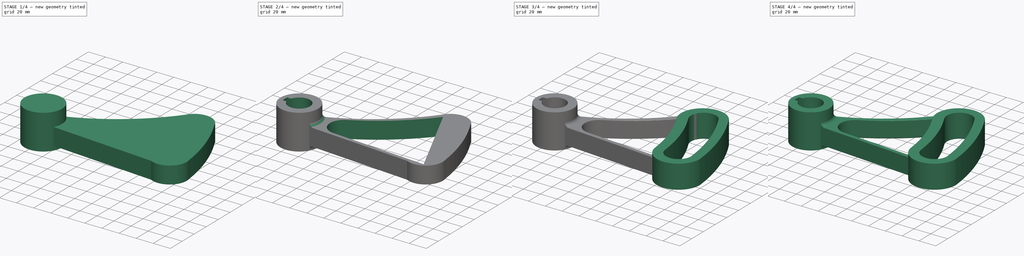
[diagram: build sequence overview — one tinted view per stage of 4, left to right]
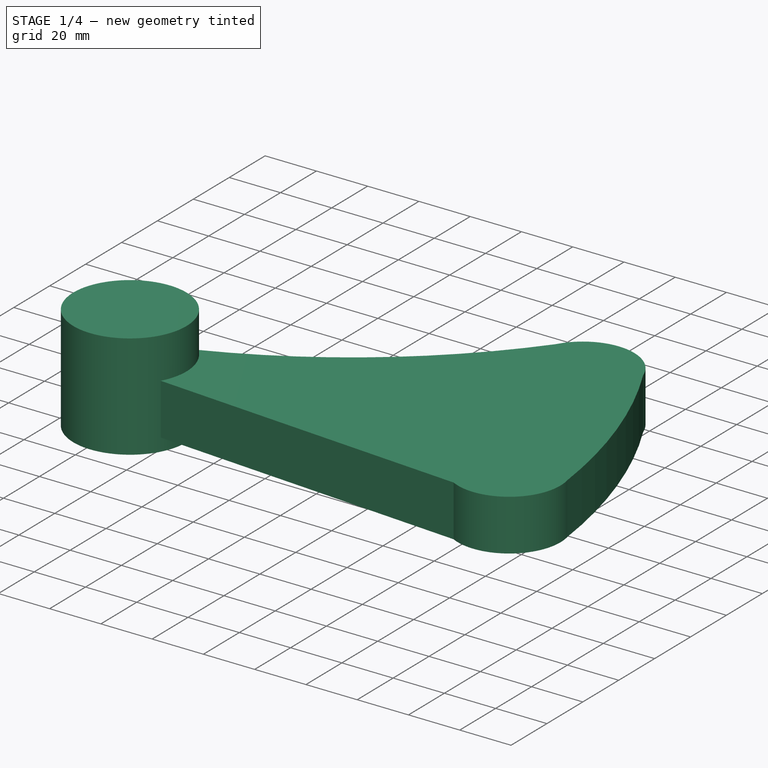
[diagram: stage 1 of 4 — iso view after this stage's code; geometry added in this stage tinted green]
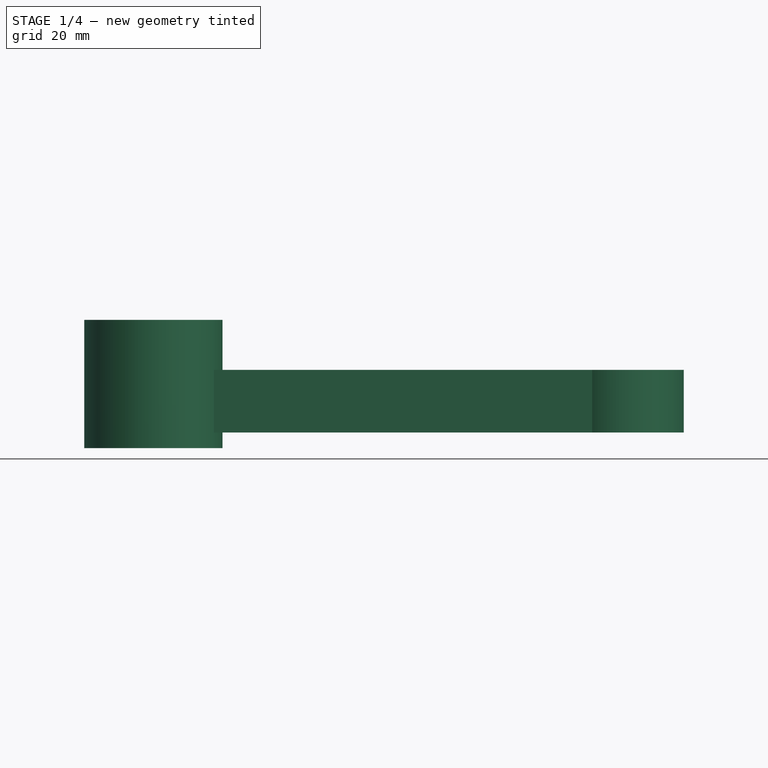
[diagram: stage 1 of 4 — front view after this stage's code; geometry added in this stage tinted green]
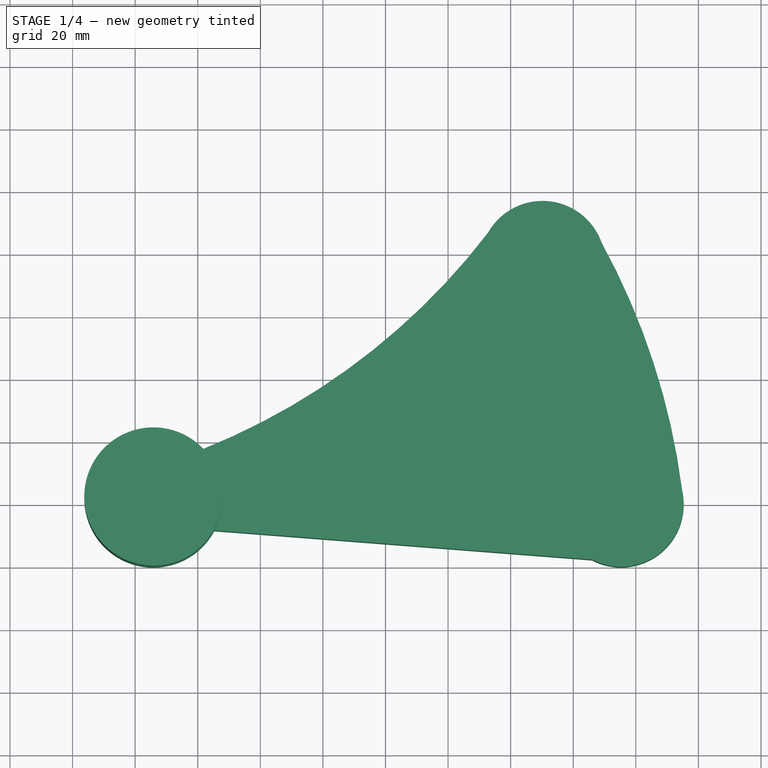
[diagram: stage 1 of 4 — top view after this stage's code; geometry added in this stage tinted green]
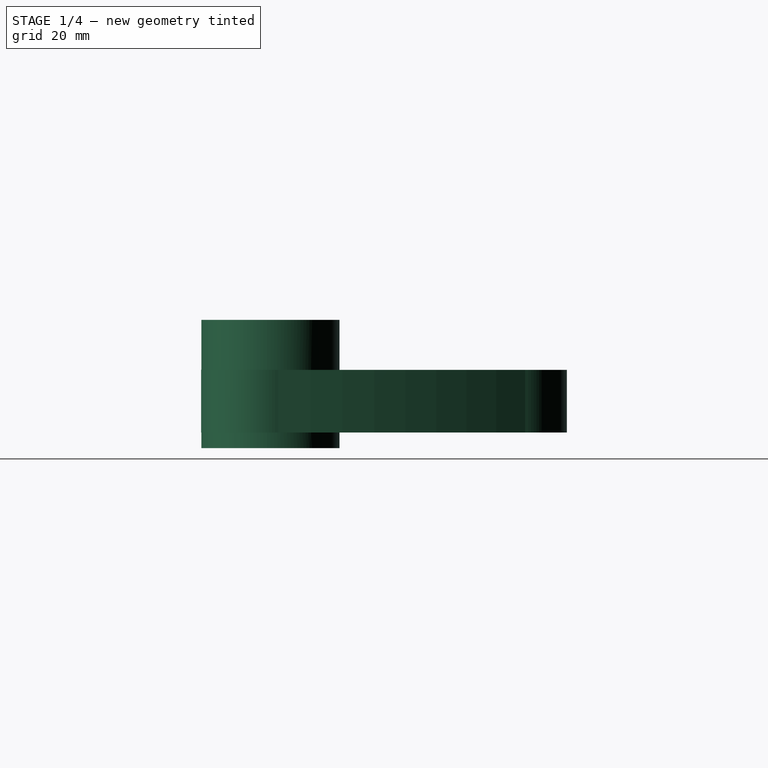
[diagram: stage 1 of 4 — right view after this stage's code; geometry added in this stage tinted green]
FCSTD DOCUMENT  (FreeCAD 0.21R33771 (Git))
Label: ex77
License: All rights reserved
LicenseURL: http://en.wikipedia.org/wiki/All_rights_reserved
objects: Sketcher::SketchObject×7, PartDesign::Fillet×4, PartDesign::Pad×3, PartDesign::Pocket×3, PartDesign::Body×1
note: 28 computed .brp shape members not serialized (recipe doc carries the construction recipe); baked Part::Feature solids carry a one-line shape summary decoded from their .brp

FEATURE [Sketcher::SketchObject] Sketch001
  FullyConstrained = false
  MapMode = 5
  Support = -> [XY_Plane]
  sketch-geometry (12):
    g0: ArcOfCircle CenterX=-74.1747 CenterY=2.1336 CenterZ=0 NormalX=0 NormalY=0 NormalZ=1 AngleXU=0 Radius=9.3715 StartAngle=1.85402 EndAngle=4.9092
    g1: LineSegment StartX=-72.3422 StartY=-7.05698 StartZ=0 EndX=66.0257 EndY=-17.7539 EndZ=0
    g2: ArcOfCircle CenterX=75.2852 CenterY=0 CenterZ=0 NormalX=0 NormalY=0 NormalZ=1 AngleXU=0 Radius=20.0234 StartAngle=4.23165 EndAngle=6.51385
    g3: ArcOfCircle CenterX=50.1887 CenterY=76.8527 CenterZ=0 NormalX=0 NormalY=0 NormalZ=1 AngleXU=0 Radius=20.0234 StartAngle=0.340709 EndAngle=2.6287
    g4: GeomPoint X=65.5913 Y=89.6472 Z=0
    g5: GeomPoint X=94.7783 Y=4.57789 Z=0
    g6: GeomPoint X=32.7417 Y=86.6783 Z=0
    g7: GeomPoint X=34.2788 Y=86.3173 Z=0
    g8: GeomPoint X=-76.6982 Y=11.1589 Z=0
    g9: GeomPoint X=-76.6414 Y=10.3382 Z=0
    g10: ArcOfCircle CenterX=-138.672 CenterY=218.03 CenterZ=0 NormalX=0 NormalY=0 NormalZ=1 AngleXU=0 Radius=215.954 StartAngle=5.003 EndAngle=5.62934
    g11: ArcOfCircle CenterX=-127.411 CenterY=-24.113 CenterZ=0 NormalX=0 NormalY=0 NormalZ=1 AngleXU=0 Radius=224.034 StartAngle=0.128418 EndAngle=0.501267
  constraints (13):
    c: PointOnObject(g2,g-1)
    c: PointOnObject(g4,g3)
    c: PointOnObject(g5,g2)
    c: Equal(g3,g2)
    c: PointOnObject(g6,g3)
    c: PointOnObject(g8,g0)
    c: PointOnObject(g10,g0)
    c: Coincident(g1,g2)
    c: Coincident(g0,g1)
    c: PointOnObject(g0,g10)
    c: PointOnObject(g11,g3)
    c: Coincident(g10,g3)
    c: PointOnObject(g11,g2)
FEATURE [PartDesign::Pad] Pad
  Direction = (0,0,1)
  Length = 20
  Length2 = 10
  Profile = -> Sketch001
  ReferenceAxis = -> Sketch001 [N_Axis]
  Refine = true
  Type = 0
FEATURE [Sketcher::SketchObject] Sketch002
  AttachmentOffset = pos=(0,0,-5) rot=(0,0,1;0rad)
  FullyConstrained = false
  MapMode = 5
  Placement = pos=(0,0,-5) rot=(0,0,1;0rad)
  Support = -> [XY_Plane]
  sketch-geometry (1):
    g0: Circle CenterX=-74.1743 CenterY=2.13435 CenterZ=0 NormalX=0 NormalY=0 NormalZ=1 AngleXU=0 Radius=22.077
FEATURE [PartDesign::Pad] Pad001
  BaseFeature = -> Pad
  Direction = (0,0,1)
  Length = 41
  Length2 = 10
  Profile = -> Sketch002
  ReferenceAxis = -> Sketch002 [N_Axis]
  Refine = true
  Type = 0
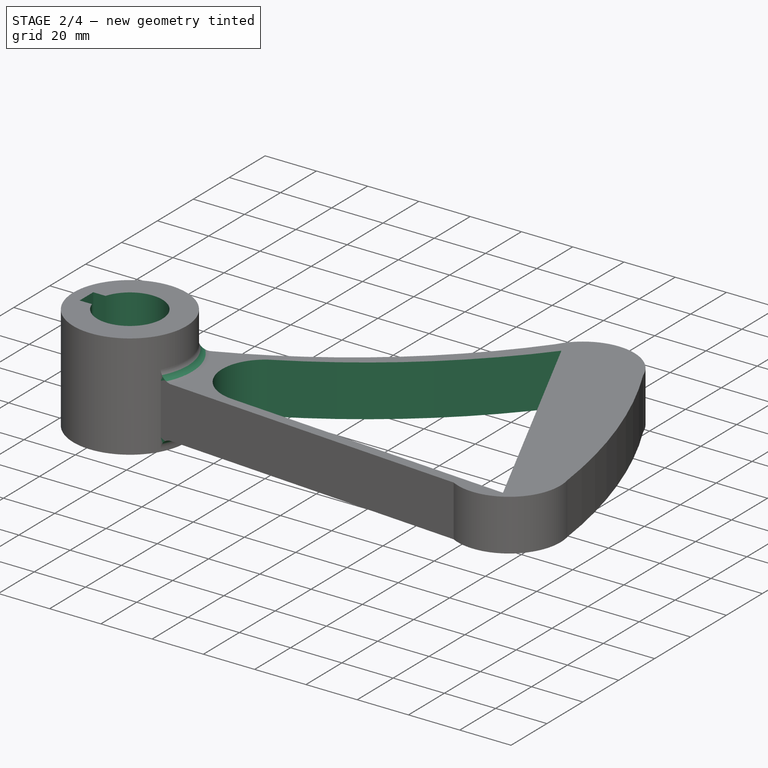
[diagram: stage 2 of 4 — iso view after this stage's code; geometry added in this stage tinted green]
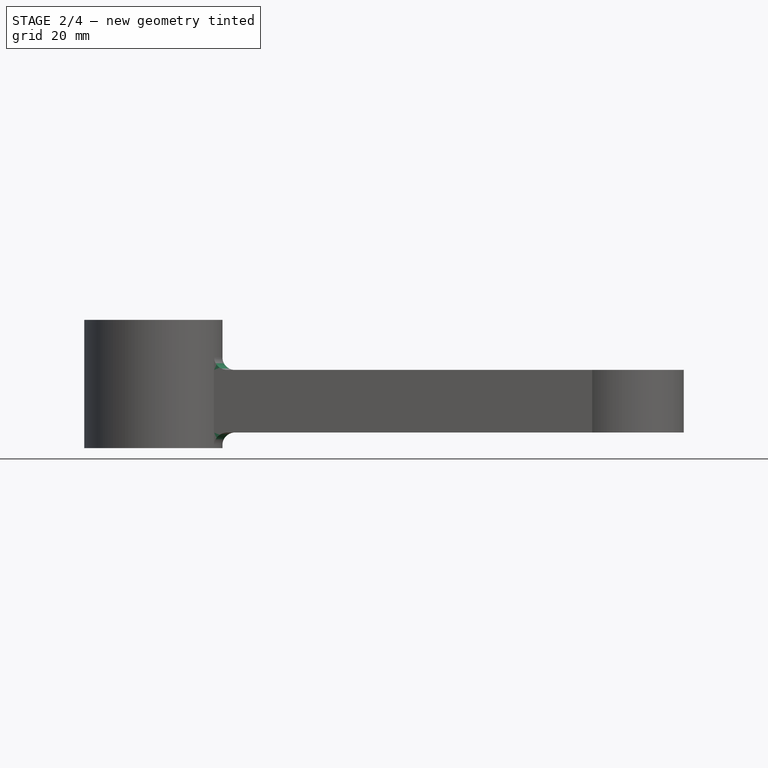
[diagram: stage 2 of 4 — front view after this stage's code; geometry added in this stage tinted green]
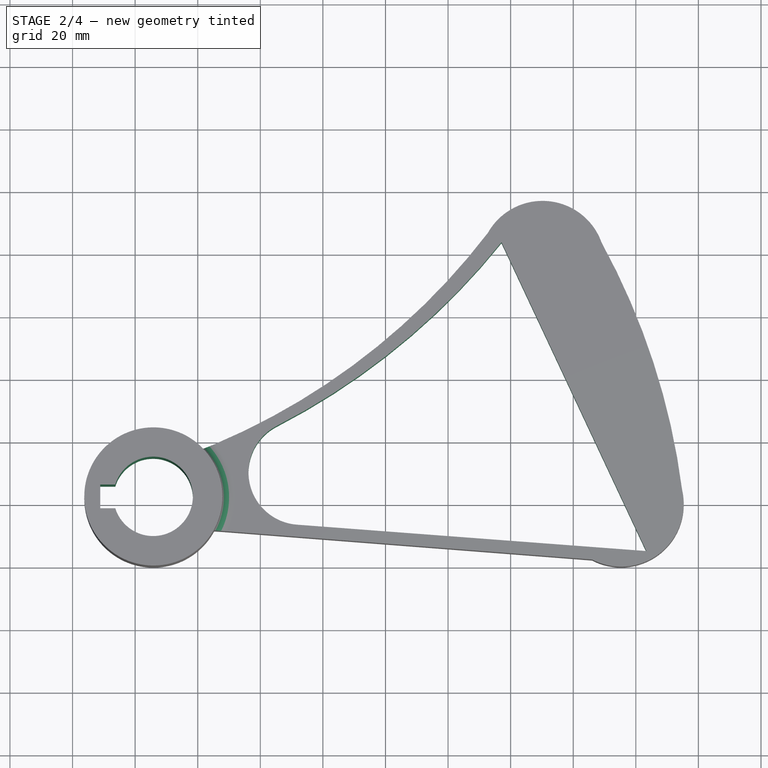
[diagram: stage 2 of 4 — top view after this stage's code; geometry added in this stage tinted green]
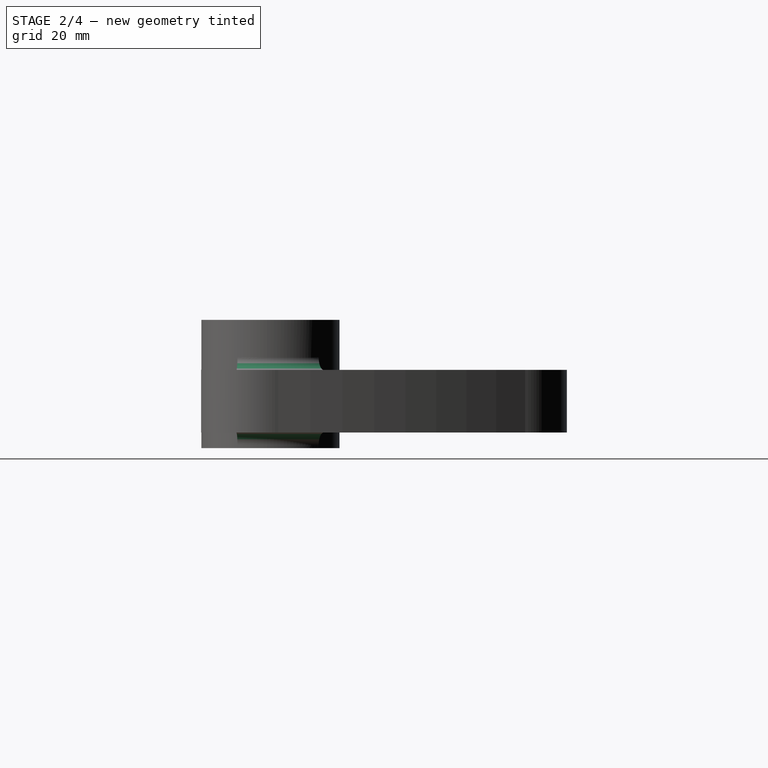
[diagram: stage 2 of 4 — right view after this stage's code; geometry added in this stage tinted green]
FEATURE [Sketcher::SketchObject] Sketch003
  FullyConstrained = false
  MapMode = 5
  Placement = pos=(0,0,36) rot=(0,0,1;0rad)
  Support = -> [Pad001]
  sketch-geometry (5):
    g0: ArcOfCircle CenterX=-74.2395 CenterY=2.16483 CenterZ=0 NormalX=0 NormalY=0 NormalZ=1 AngleXU=0 Radius=12.6888 StartAngle=3.44472 EndAngle=9.12165
    g1: LineSegment StartX=-86.3498 StartY=5.95248 StartZ=0 EndX=-91.1621 EndY=5.95248 EndZ=0
    g2: LineSegment StartX=-91.1621 StartY=5.95248 StartZ=0 EndX=-91.1621 EndY=-1.62282 EndZ=0
    g3: LineSegment StartX=-91.1621 StartY=-1.62282 StartZ=0 EndX=-86.3498 EndY=-1.62282 EndZ=0
    g4: GeomPoint X=-74.2395 Y=2.16483 Z=0
  constraints (8):
    c: Coincident(g1,g2)
    c: Coincident(g2,g3)
    c: Horizontal(g1)
    c: Horizontal(g3)
    c: Vertical(g2)
    c: Coincident(g4,g0)
    c: Coincident(g0,g1)
    c: Coincident(g0,g3)
FEATURE [PartDesign::Pocket] Pocket
  BaseFeature = -> Pad001
  Direction = (0,0,-1)
  Length = 5
  Length2 = 5
  Profile = -> Sketch003
  ReferenceAxis = -> Sketch003 [N_Axis]
  Refine = true
  Type = 1
FEATURE [PartDesign::Fillet] Fillet
  Base = -> Pocket [Edge17,Edge16,Edge10,Edge9]
  BaseFeature = -> Pocket
  Radius = 4
  Refine = true
  SupportTransform = false
  UseAllEdges = false
FEATURE [Sketcher::SketchObject] Sketch004
  AttachmentOffset = pos=(0,0,20) rot=(0,0,1;0rad)
  FullyConstrained = false
  MapMode = 5
  Placement = pos=(0,0,20) rot=(0,0,1;0rad)
  Support = -> [XY_Plane]
  sketch-geometry (5):
    g0: ArcOfCircle CenterX=-137.01 CenterY=223.39 CenterZ=0 NormalX=0 NormalY=0 NormalZ=1 AngleXU=0 Radius=223.237 StartAngle=5.18846 EndAngle=5.60676
    g1: LineSegment StartX=-28.2886 StartY=-6.60949 StartZ=0 EndX=83.3637 EndY=-15.0417 EndZ=0
    g2: GeomPoint X=37.0731 Y=83.6413 Z=0
    g3: LineSegment StartX=37.0731 StartY=83.6413 StartZ=0 EndX=83.3637 EndY=-15.0417 EndZ=0
    g4: ArcOfCircle CenterX=-27.0274 CenterY=10.091 CenterZ=0 NormalX=0 NormalY=0 NormalZ=1 AngleXU=0 Radius=16.748 StartAngle=2.04687 EndAngle=4.63701
  constraints (5):
    c: Coincident(g3,g2)
    c: Coincident(g3,g1)
    c: Coincident(g0,g3)
    c: Tangent(g4,g1) = -1.5708
    c: Tangent(g4,g0) = 1.5708
FEATURE [PartDesign::Pocket] Pocket001
  BaseFeature = -> Fillet
  Direction = (0,0,-1)
  Length = 5
  Length2 = 5
  Profile = -> Sketch004
  ReferenceAxis = -> Sketch004 [N_Axis]
  Refine = true
  Type = 1
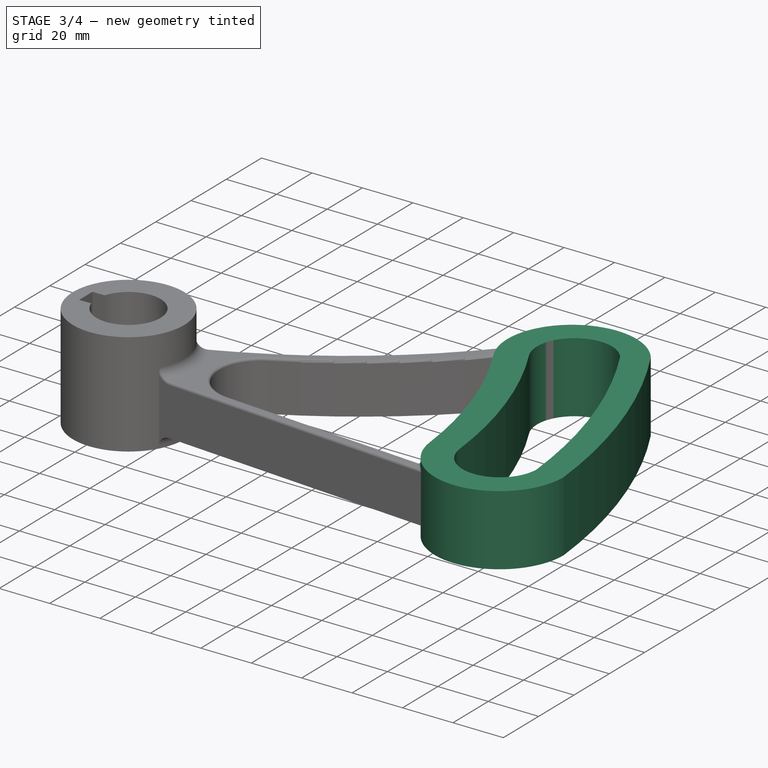
[diagram: stage 3 of 4 — iso view after this stage's code; geometry added in this stage tinted green]
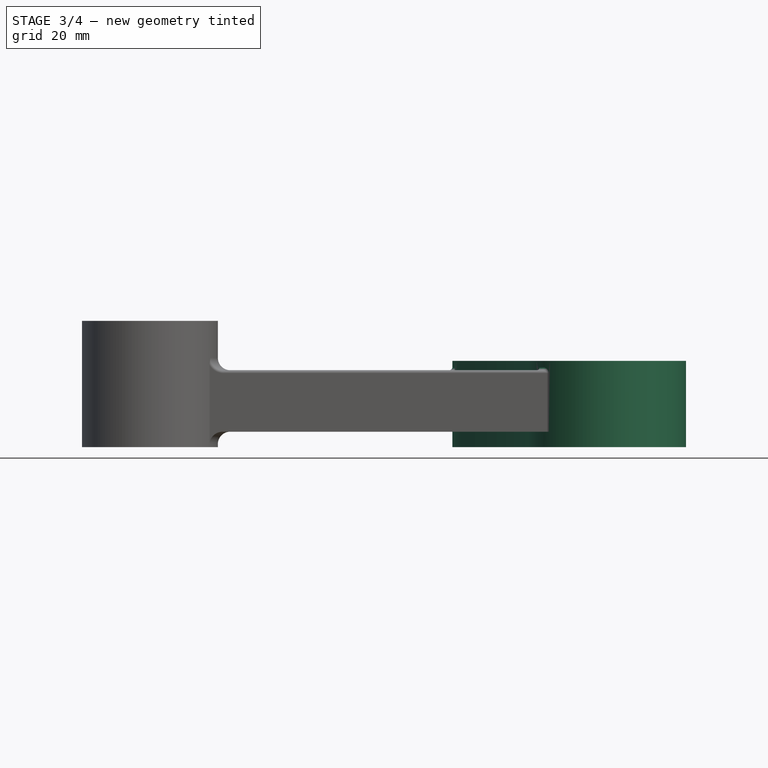
[diagram: stage 3 of 4 — front view after this stage's code; geometry added in this stage tinted green]
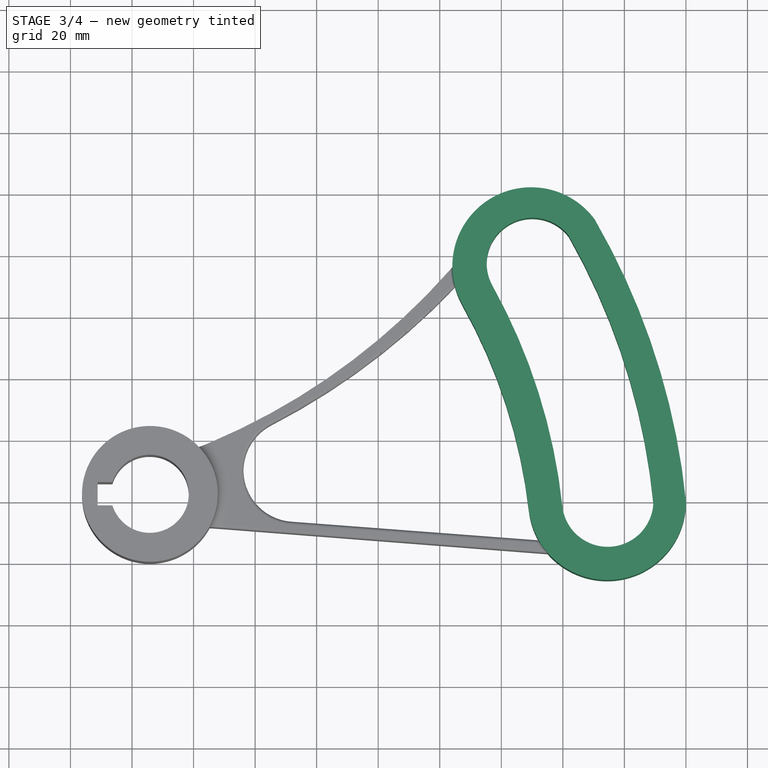
[diagram: stage 3 of 4 — top view after this stage's code; geometry added in this stage tinted green]
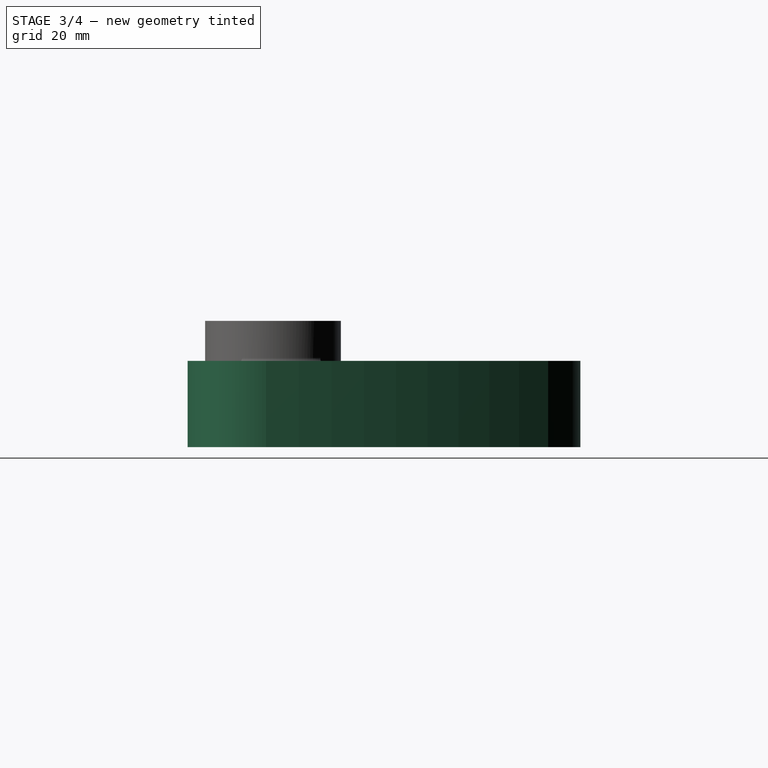
[diagram: stage 3 of 4 — right view after this stage's code; geometry added in this stage tinted green]
FEATURE [Sketcher::SketchObject] Sketch
  FullyConstrained = false
  MapMode = 5
  Support = -> [XY_Plane]
  sketch-geometry (12):
    g0: Circle CenterX=-74.1743 CenterY=2.13435 CenterZ=0 NormalX=0 NormalY=0 NormalZ=1 AngleXU=0 Radius=9.37216
    g1: Circle CenterX=-138.672 CenterY=218.03 CenterZ=0 NormalX=0 NormalY=0 NormalZ=1 AngleXU=0 Radius=215.954
    g2: LineSegment StartX=-72.3422 StartY=-7.05698 StartZ=0 EndX=81.706 EndY=-18.9661 EndZ=0
    g3: Circle CenterX=75.2852 CenterY=0 CenterZ=0 NormalX=0 NormalY=0 NormalZ=1 AngleXU=0 Radius=20.0234
    g4: Circle CenterX=50.1887 CenterY=76.8527 CenterZ=0 NormalX=0 NormalY=0 NormalZ=1 AngleXU=0 Radius=20.0234
    g5: Circle CenterX=-127.411 CenterY=-24.113 CenterZ=0 NormalX=0 NormalY=0 NormalZ=1 AngleXU=0 Radius=224.034
    g6: GeomPoint X=65.5913 Y=89.6472 Z=0
    g7: GeomPoint X=94.7783 Y=4.57789 Z=0
    g8: GeomPoint X=32.7417 Y=86.6783 Z=0
    g9: GeomPoint X=34.2788 Y=86.3173 Z=0
    g10: GeomPoint X=-76.6982 Y=11.1603 Z=0
    g11: GeomPoint X=-76.6414 Y=10.3382 Z=0
  constraints (12):
    c: PointOnObject(g2,g0)
    c: PointOnObject(g3,g-1)
    c: PointOnObject(g2,g3)
    c: PointOnObject(g6,g4)
    c: PointOnObject(g6,g5)
    c: PointOnObject(g7,g5)
    c: PointOnObject(g7,g3)
    c: Equal(g4,g3)
    c: PointOnObject(g8,g1)
    c: PointOnObject(g8,g4)
    c: PointOnObject(g10,g0)
    c: PointOnObject(g10,g1)
FEATURE [Sketcher::SketchObject] Sketch005
  AttachmentOffset = pos=(0,0,-5) rot=(0,0,1;0rad)
  FullyConstrained = false
  MapMode = 5
  Placement = pos=(0,0,-5) rot=(0,0,1;0rad)
  Support = -> [XY_Plane]
  sketch-geometry (6):
    g0: ArcOfCircle CenterX=74.4058 CenterY=0 CenterZ=0 NormalX=0 NormalY=0 NormalZ=1 AngleXU=0 Radius=25.6135 StartAngle=3.25592 EndAngle=6.27691
    g1: ArcOfCircle CenterX=49.7097 CenterY=76.3977 CenterZ=0 NormalX=0 NormalY=0 NormalZ=1 AngleXU=0 Radius=25.6135 StartAngle=0.631585 EndAngle=3.65257
    g2: ArcOfCircle CenterX=-128.02 CenterY=-23.2452 CenterZ=0 NormalX=0 NormalY=0 NormalZ=1 AngleXU=0 Radius=229.204 StartAngle=0.100887 EndAngle=0.524423
    g3: GeomPoint X=70.3821 Y=91.5205 Z=0
    g4: GeomPoint X=99.3156 Y=5.96243 Z=0
    g5: ArcOfCircle CenterX=-128.02 CenterY=-23.2452 CenterZ=0 NormalX=0 NormalY=0 NormalZ=1 AngleXU=0 Radius=178.143 StartAngle=0.114332 EndAngle=0.510977
  constraints (11):
    c: PointOnObject(g0,g-1)
    c: PointOnObject(g3,g1)
    c: PointOnObject(g3,g2)
    c: PointOnObject(g4,g2)
    c: PointOnObject(g4,g0)
    c: Equal(g1,g0)
    c: Coincident(g5,g2)
    c: Tangent(g1,g5) = 1.5708
    c: Tangent(g0,g5) = 1.5708
    c: Coincident(g1,g2)
    c: Coincident(g0,g2)
FEATURE [PartDesign::Pad] Pad002
  BaseFeature = -> Pocket001
  Direction = (0,0,1)
  Length = 28
  Length2 = 10
  Profile = -> Sketch005
  ReferenceAxis = -> Sketch005 [N_Axis]
  Refine = true
  Type = 0
FEATURE [Sketcher::SketchObject] Sketch006
  AttachmentOffset = pos=(0,0,34) rot=(0,0,1;0rad)
  FullyConstrained = false
  MapMode = 5
  Placement = pos=(0,0,34) rot=(0,0,1;0rad)
  Support = -> [XY_Plane]
  sketch-geometry (6):
    g0: ArcOfCircle CenterX=74.5825 CenterY=0 CenterZ=0 NormalX=0 NormalY=0 NormalZ=1 AngleXU=0 Radius=14.8379 StartAngle=3.24864 EndAngle=6.25596
    g1: ArcOfCircle CenterX=50.089 CenterY=77.2584 CenterZ=0 NormalX=0 NormalY=0 NormalZ=1 AngleXU=0 Radius=14.8379 StartAngle=0.641246 EndAngle=3.64856
    g2: ArcOfCircle CenterX=-128.268 CenterY=-21.7986 CenterZ=0 NormalX=0 NormalY=0 NormalZ=1 AngleXU=0 Radius=218.731 StartAngle=0.0979692 EndAngle=0.516051
    g3: GeomPoint X=61.9794 Y=86.1344 Z=0
    g4: GeomPoint X=88.9905 Y=3.54614 Z=0
    g5: ArcOfCircle CenterX=-128.268 CenterY=-21.7986 CenterZ=0 NormalX=0 NormalY=0 NormalZ=1 AngleXU=0 Radius=189.18 StartAngle=0.107051 EndAngle=0.50697
  constraints (11):
    c: PointOnObject(g0,g-1)
    c: PointOnObject(g3,g1)
    c: PointOnObject(g3,g2)
    c: PointOnObject(g4,g2)
    c: PointOnObject(g4,g0)
    c: Equal(g1,g0)
    c: Coincident(g5,g2)
    c: Tangent(g1,g5) = 1.5708
    c: Tangent(g0,g5) = 1.5708
    c: Coincident(g1,g2)
    c: Coincident(g0,g2)
FEATURE [PartDesign::Pocket] Pocket002
  BaseFeature = -> Pad002
  Direction = (0,0,-1)
  Length = 5
  Length2 = 5
  Midplane = true
  Profile = -> Sketch006
  ReferenceAxis = -> Sketch006 [N_Axis]
  Refine = true
  Type = 1
FEATURE [PartDesign::Fillet] Fillet001
  Base = -> Pocket002 [Edge27,Edge23,Edge25,Edge26,Edge50,Edge21]
  BaseFeature = -> Pocket002
  Radius = 1
  Refine = true
  SupportTransform = false
  UseAllEdges = false
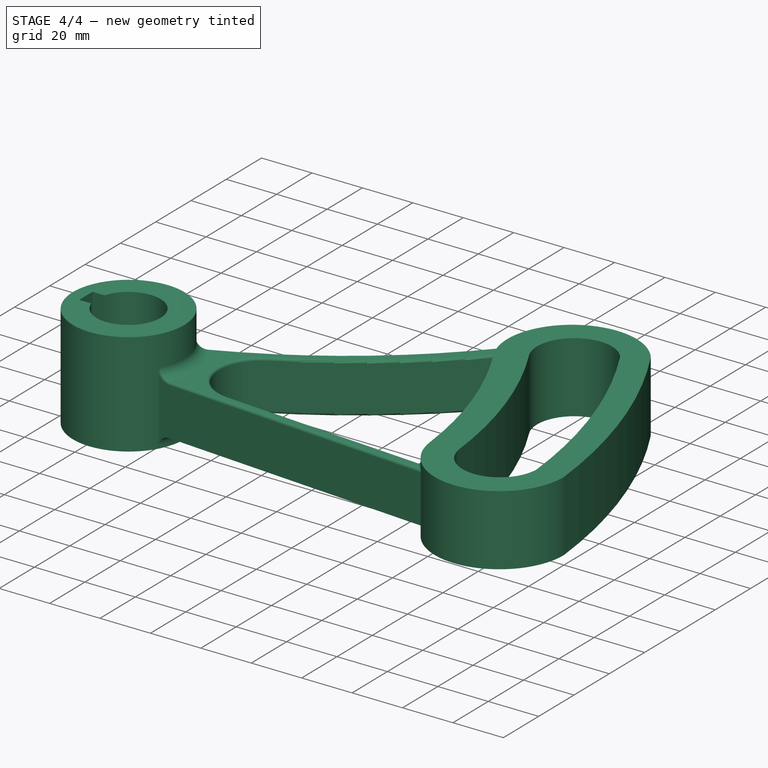
[diagram: stage 4 of 4 — iso view after this stage's code; geometry added in this stage tinted green]
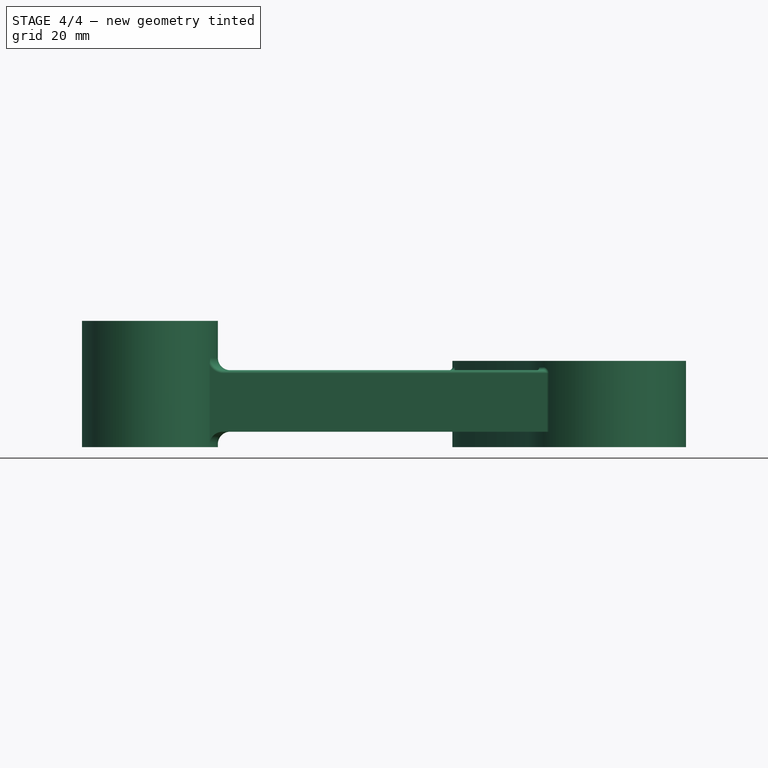
[diagram: stage 4 of 4 — front view after this stage's code; geometry added in this stage tinted green]
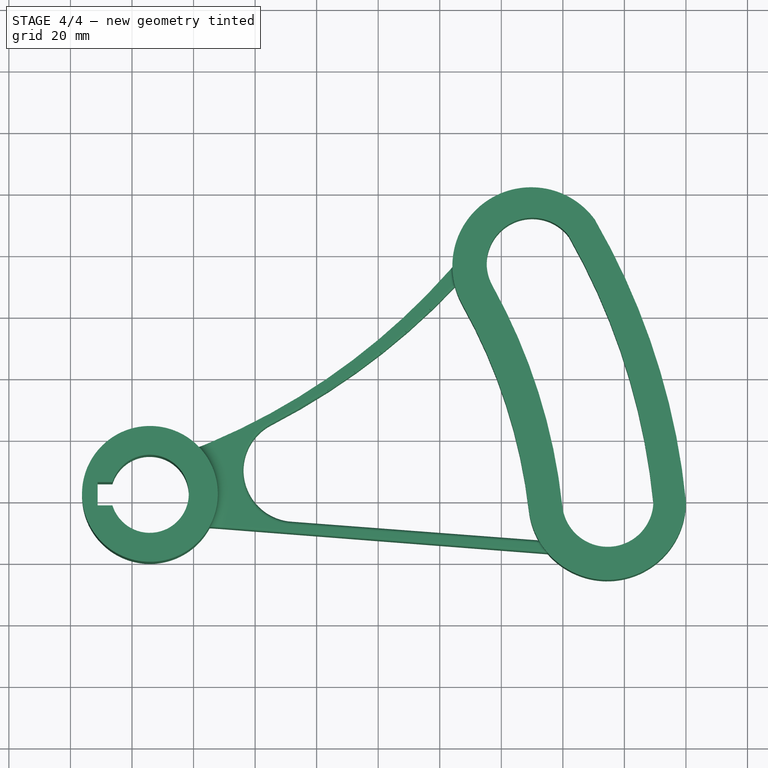
[diagram: stage 4 of 4 — top view after this stage's code; geometry added in this stage tinted green]
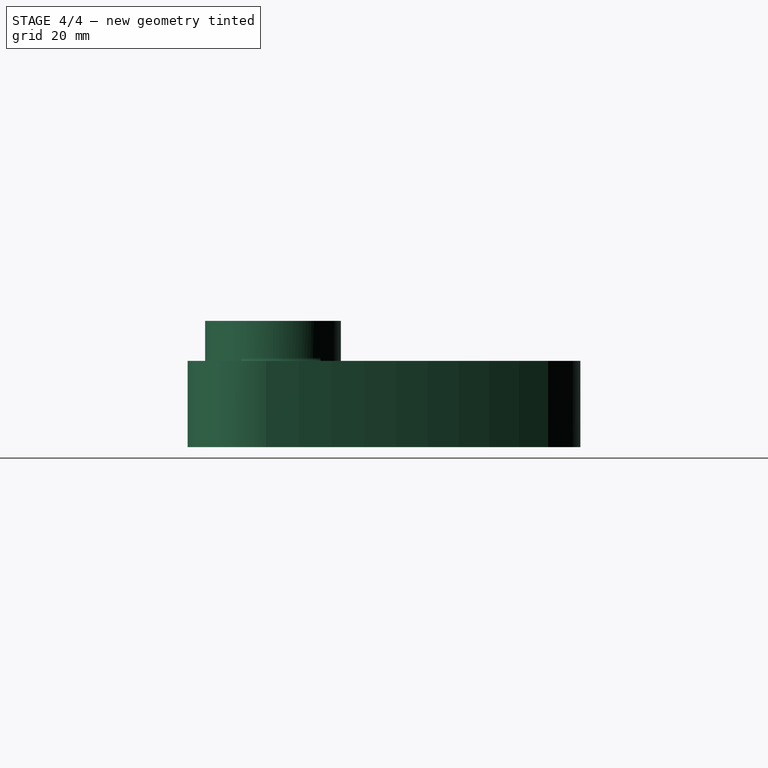
[diagram: stage 4 of 4 — right view after this stage's code; geometry added in this stage tinted green]
FEATURE [PartDesign::Fillet] Fillet002
  Base = -> Fillet001 [Edge48,Edge49,Edge47]
  BaseFeature = -> Fillet001
  Radius = 1
  Refine = true
  SupportTransform = false
  UseAllEdges = false
FEATURE [PartDesign::Fillet] Fillet003
  Base = -> Fillet002 [Edge27]
  BaseFeature = -> Fillet002
  Radius = 1
  Refine = true
  SupportTransform = false
  UseAllEdges = false
FEATURE [PartDesign::Body] Body
  Group = -> [Sketch,Sketch001,Pad,Sketch002,Pad001,Sketch003,Pocket,Fillet,Sketch004,Pocket001,Sketch005,Pad002,Sketch006,Pocket002,Fillet001,Fillet002,Fillet003]
  Origin = -> Origin
  Tip = -> Fillet003
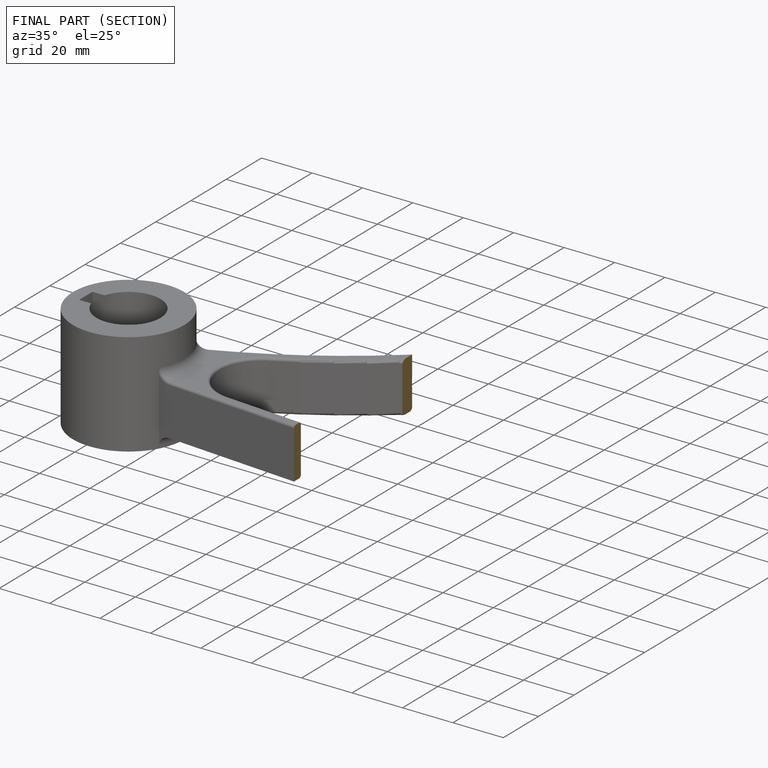
[diagram: finished part — half-section view (interior)]
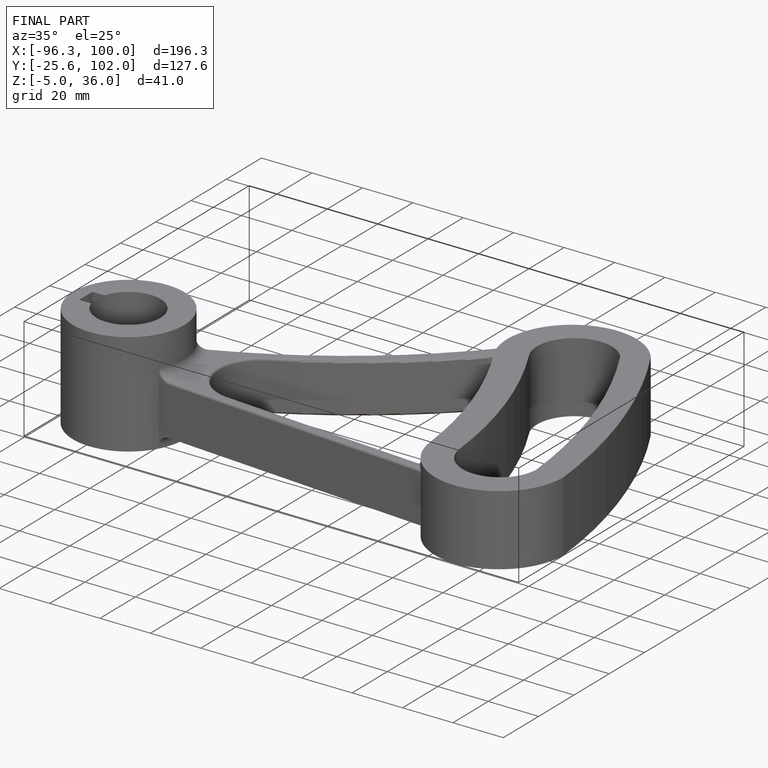
[diagram: finished part — iso view with bounding-box wireframe]
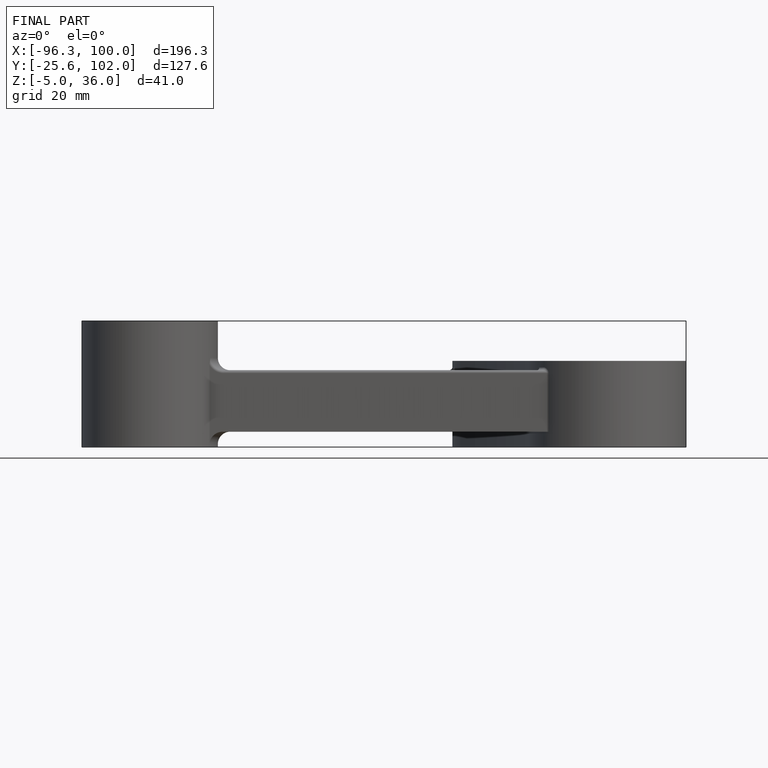
[diagram: finished part — front view with bounding-box wireframe]
